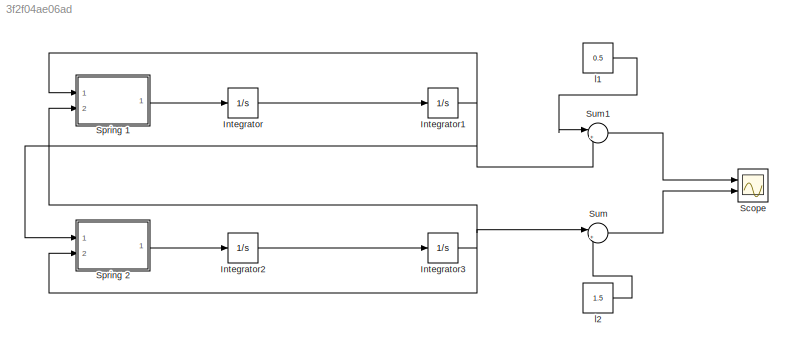
MODEL slx_3f2f04ae06ad
KIND model
CONFIG AbsTol = auto
CONFIG EnableMultiTasking = off
CONFIG FixedStep = auto
CONFIG MaxStep = auto
CONFIG MinStep = auto
CONFIG RelTol = 1e-3
CONFIG SampleTimeConstraint = Unconstrained
CONFIG Solver = VariableStepAuto
CONFIG SolverName = VariableStepAuto
CONFIG StartTime = 0.0
CONFIG StopTime = 10.0
BLOCK [Integrator] Integrator
  Ports = [1, 1]
BLOCK [Integrator] Integrator1
  InitialCondition = 0.3
  Ports = [1, 1]
BLOCK [Integrator] Integrator2
  Ports = [1, 1]
BLOCK [Integrator] Integrator3
  InitialCondition = 0.7
  Ports = [1, 1]
BLOCK [Scope] Scope
  Floating = off
  NumInputPorts = 2
  Ports = [2]
  ScopeSpecificationString = Simulink.scopes.TimeScopeBlockCfg('CurrentConfiguration', extmgr.ConfigurationSet(extmgr.Configuration('Core','General UI',true),extmgr.Configuration('Core','Source UI',true),extmgr.Configuration('Sources','WiredSimulink',true),extmgr.Configuration('Visuals','Time Domain',true,'SerializedDisplays',{struct('MinYLimReal','-0.28206','MaxYLimReal','2.47578','YLabelReal','','MinYLimMag','0.00000','MaxY...<+1330ch>
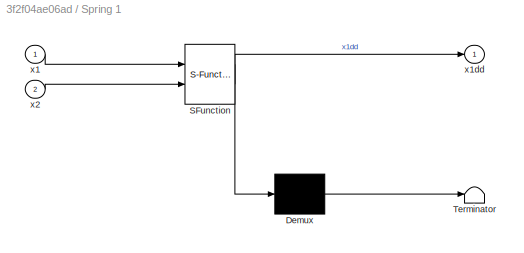
BLOCK [SubSystem] Spring 1
  ErrorFcn = Stateflow.Translate.translate
  PermitHierarchicalResolution = ExplicitOnly
  Ports = [2, 1]
  RequestExecContextInheritance = off
  SFBlockType = MATLAB Function
  TreatAsAtomicUnit = on
BLOCK [Demux] Spring 1/ Demux 
  Outputs = 1
  Ports = [1, 1]
BLOCK [S-Function] Spring 1/ SFunction 
  EnableBusSupport = on
  FunctionName = sf_sfun
  PortCounts = [2 2]
  Ports = [2, 2]
  SFcnIsStateOwnerBlock = off
  SFunctionDeploymentMode = off
  Tag = Stateflow S-Function 2
BLOCK [Terminator] Spring 1/ Terminator 
BLOCK [Inport] Spring 1/x1
  IconDisplay = Port number
BLOCK [Outport] Spring 1/x1dd
  IconDisplay = Port number
BLOCK [Inport] Spring 1/x2
  IconDisplay = Port number
  Port = 2
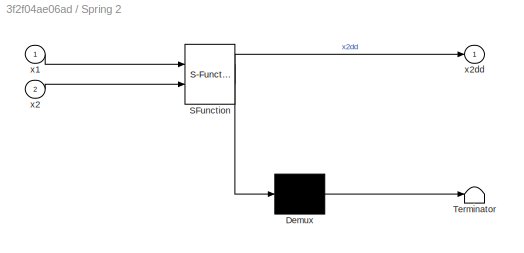
BLOCK [SubSystem] Spring 2
  ErrorFcn = Stateflow.Translate.translate
  PermitHierarchicalResolution = ExplicitOnly
  Ports = [2, 1]
  RequestExecContextInheritance = off
  SFBlockType = MATLAB Function
  TreatAsAtomicUnit = on
BLOCK [Demux] Spring 2/ Demux 
  Outputs = 1
  Ports = [1, 1]
BLOCK [S-Function] Spring 2/ SFunction 
  EnableBusSupport = on
  FunctionName = sf_sfun
  PortCounts = [2 2]
  Ports = [2, 2]
  SFcnIsStateOwnerBlock = off
  SFunctionDeploymentMode = off
  Tag = Stateflow S-Function 1
BLOCK [Terminator] Spring 2/ Terminator 
BLOCK [Inport] Spring 2/x1
  IconDisplay = Port number
BLOCK [Inport] Spring 2/x2
  IconDisplay = Port number
  Port = 2
BLOCK [Outport] Spring 2/x2dd
  IconDisplay = Port number
BLOCK [Sum] Sum
  IconShape = round
  InputSameDT = off
  Inputs = |++
  OutDataTypeStr = Inherit: Inherit via internal rule
  Ports = [2, 1]
  SaturateOnIntegerOverflow = off
BLOCK [Sum] Sum1
  IconShape = round
  InputSameDT = off
  Inputs = |++
  OutDataTypeStr = Inherit: Inherit via internal rule
  Ports = [2, 1]
  SaturateOnIntegerOverflow = off
BLOCK [Constant] l1
  Value = 0.5
BLOCK [Constant] l2
  Value = 1.5
NET Integrator1:1 -> Spring 1:1, Spring 2:1, Sum1:2
LINE Integrator2:1 -> Integrator3:1
NET Integrator3:1 -> Spring 1:2, Spring 2:2, Sum:1
LINE Integrator:1 -> Integrator1:1
LINE Spring 1:1 -> Integrator:1
LINE Spring 2:1 -> Integrator2:1
LINE Sum1:1 -> Scope:1
LINE Sum:1 -> Scope:2
LINE l1:1 -> Sum1:1
LINE l2:1 -> Sum:2
note: NET lines group one-source signal fan-out (src -> all destinations, sorted); 1:1 wires keep LINE
CHART Spring 2 states=1 transitions=1
  STATE_LABEL 'eML_blk_kernel()'
  STATE_LABEL 'SCRIPT:\nfunction x2dd = spring2(x1,x2)\nm2=1;\n%k1=2;\nk2=4;\nx2dd = (-k2*(x2-x1))/m2;\n'
CHART Spring 1 states=1 transitions=1
  STATE_LABEL 'eML_blk_kernel()'
  STATE_LABEL 'SCRIPT:\nfunction x1dd = spring1(x1,x2)\nm1=1;\nk1=2;\nk2=4;\n\nx1dd = (k2*(x2-x1)-k1*x1)/m1;\n'
